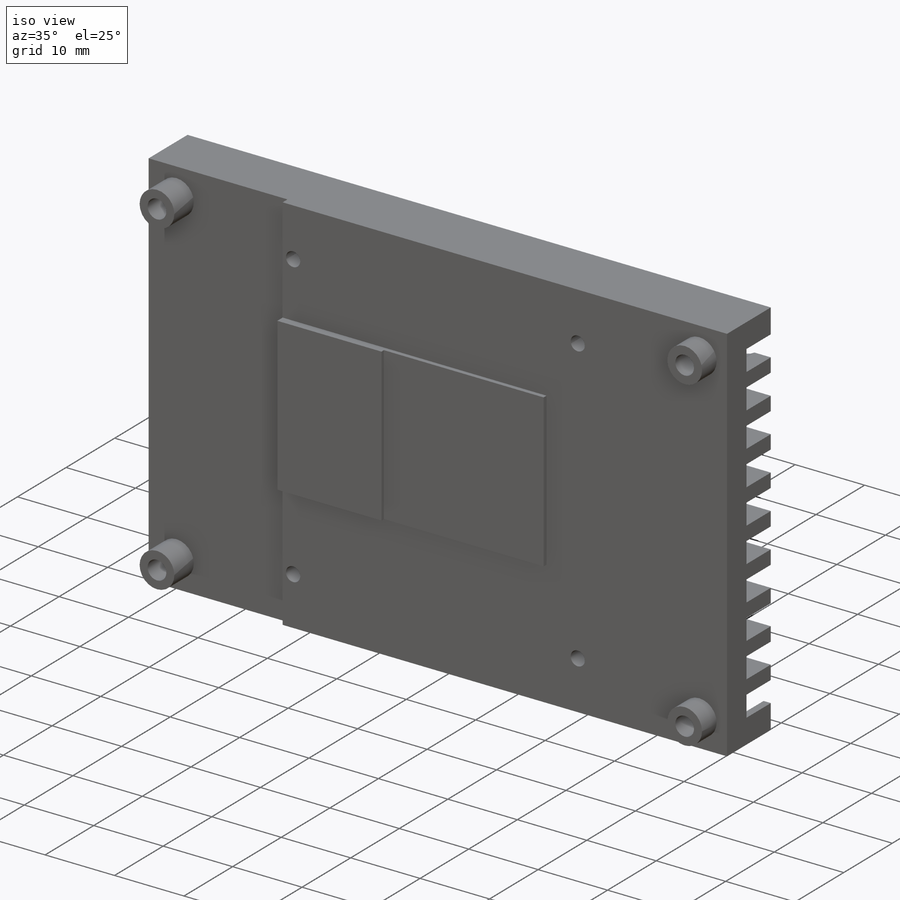
[diagram: iso view]
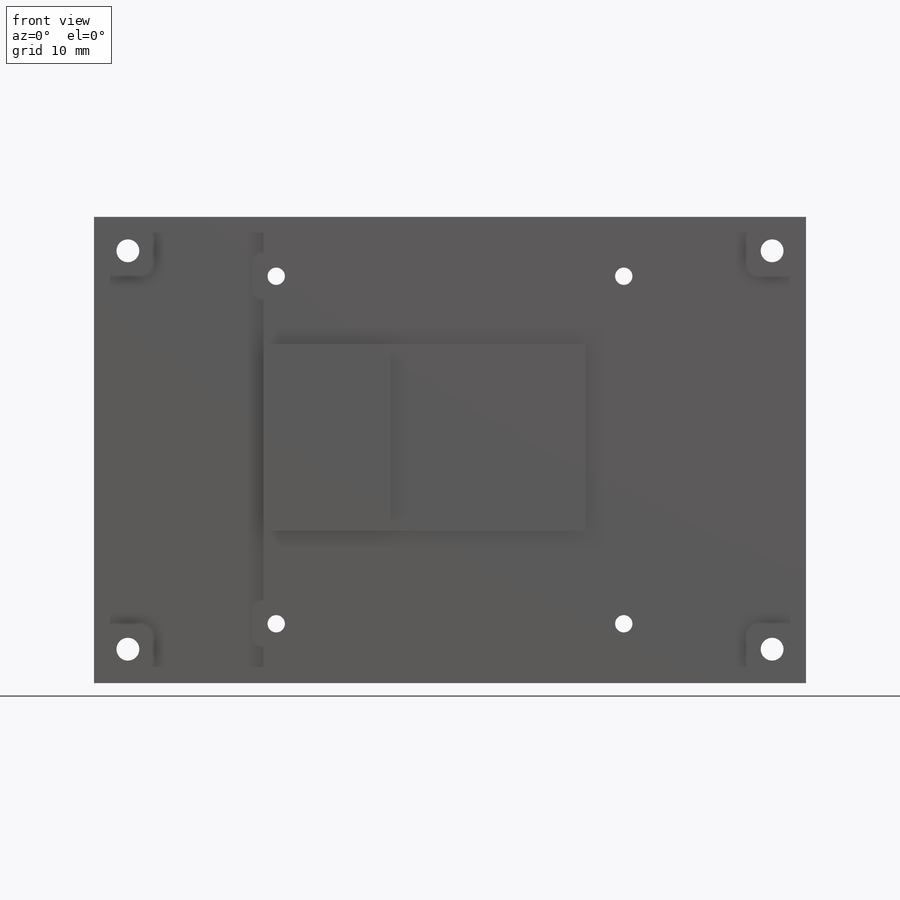
[diagram: front view]
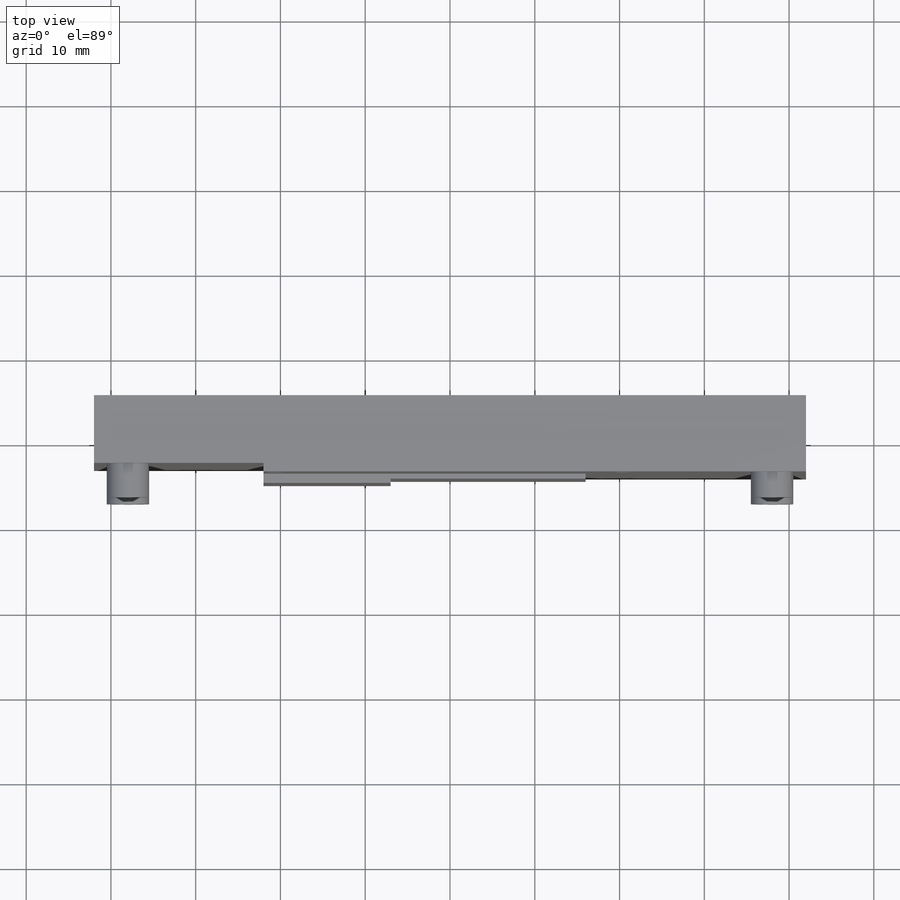
[diagram: top view]
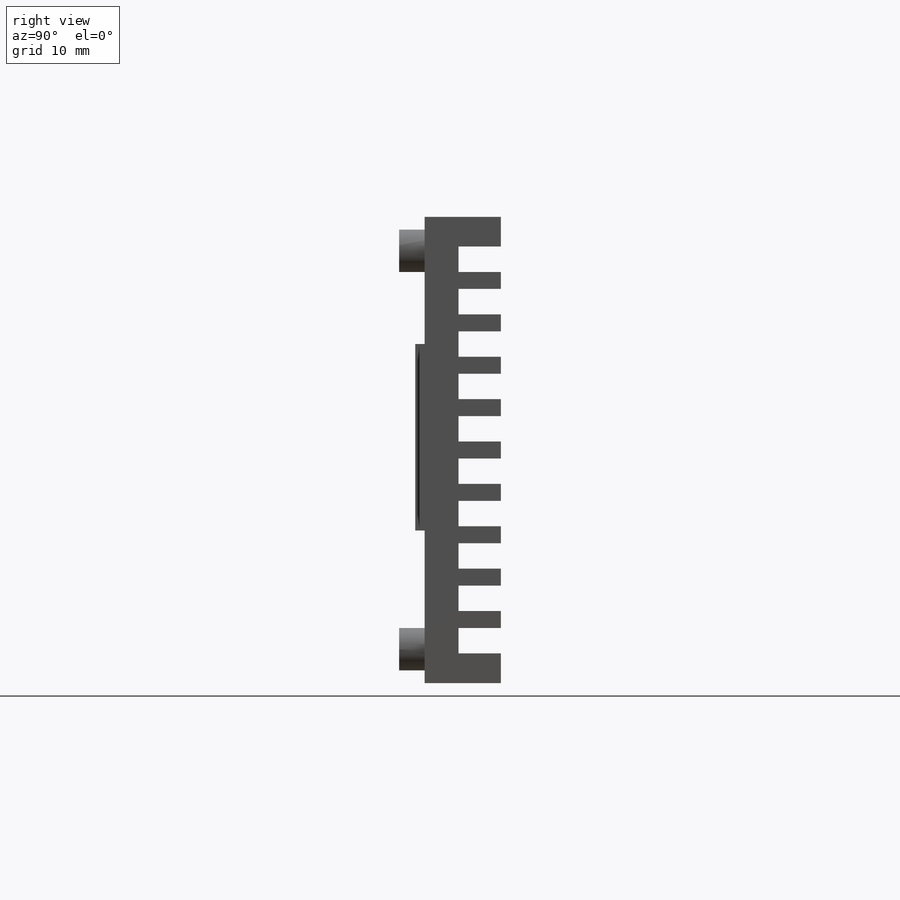
[diagram: right view]
SOLIDWORKS PART (.sldprt)
format: sldprt  version: not decoded by parser v0  size: 647,168 bytes
history: native  units: mm
features: sketch x12, extrude x4, thread x4, cut_extrude x3, hole x2, material x1 (+16 scaffold rows collapsed)
feature tree (42):
  scaffold x16  (default folders/planes/origin — collapsed)
  material  "6061 Alloy"
  sketch  "Sketch1"  dims[D1=84.0mm D2=55.0mm]
  extrude  "Extrude1"  Depth=7mm
  hole  "Ø2.7 (2.7) Diameter Hole1"  Diameter=2.7mm Depth=7mm
  sketch  "Sketch3"  dims[D1=76.0mm D2=47.0mm]
  sketch  "Sketch2"  dims[hole-wizard template sketch: 60 standard entries collapsed; hole parameters kept: c18.Thru Hole Depth=7.0mm]
  sketch  "Sketch6"  dims[D1=5.0mm]
  cut_extrude  "Extrude2"  Depth=3mm
  sketch  "Sketch7"  dims[c1.D1=~20.26244mm c1.D2=15.0mm c1.D3=18.0mm c1.D4=49.0mm c2.D1=20.0mm]
  extrude  "Extrude3"  Depth=1.9mm
  sketch  "Sketch8"
  cut_extrude  "Extrude6"  Depth=4mm
  sketch  "Sketch9"  dims[D1=26.0mm]
  extrude  "Extrude7"  Depth=2.4mm
  hole  "M2.5x0.45 Tapped Hole1"  Diameter=2.05mm Depth=7mm
  sketch  "Sketch5"  dims[c1.D1=40.0mm c1.D2=40.0mm c1.D3=9.0mm c1.D4=12.0mm c2.D1=43.0mm c2.D2=75.0mm c2.D5=40.0mm c2.D6=40.0mm c2.D7=80.0mm c3.D1=41.0mm]
  sketch  "Sketch4"  dims[hole-wizard template sketch: 60 standard entries collapsed; hole parameters kept: c18.Thru Tap Drill Depth=7.0mm]
  thread  "Hole Thread1"  Diameter=2.5mm  [1 undecoded]
  thread  "Hole Thread2"  Diameter=2.5mm  [1 undecoded]
  thread  "Hole Thread3"  Diameter=2.5mm  [1 undecoded]
  thread  "Hole Thread4"  Diameter=2.5mm  [1 undecoded]
  sketch  "Sketch14"  dims[D1=3.0mm]
  extrude  "Extrude12"  Depth=12mm
  sketch  "Sketch16"  dims[D1=3.0mm D2=3.501mm D3=48.0mm]
  cut_extrude  "Extrude13"  Depth=7mm
  sketch  "Sketch17"  dims[D1=3.0mm]
decode coverage: 24 of 25 modeling features carry decoded parameters
note: ~ marks probable driven/reference dimensions
note: 4 parameter values undecoded
note: suppression state not decoded; provenance and decode notes live in map.json
